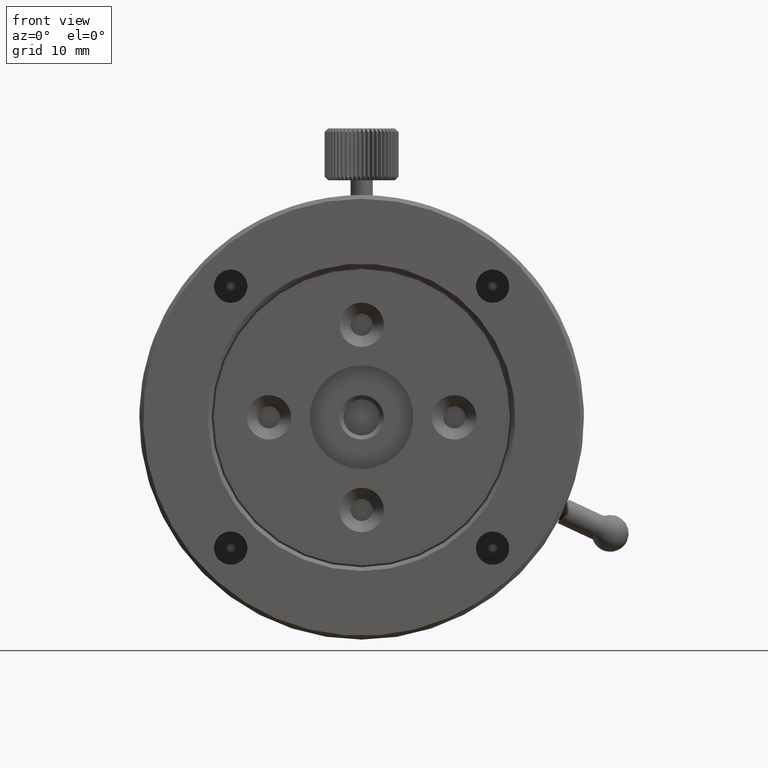
[diagram: clean part render]
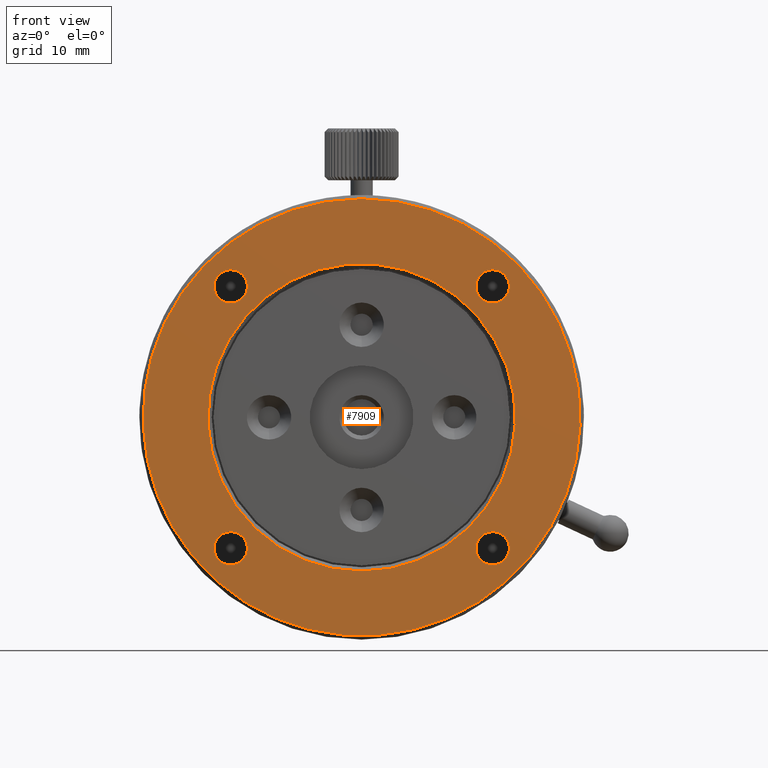
[diagram: same view with one face highlighted and labeled with its STEP entity id]
A machine part, front view. The second image highlights one B-rep face of the part: STEP entity #7909.
In plain terms, the highlighted planar face has unit normal (0, -1, 0).
Its self-contained STEP definition (entity closure, byte-faithful):
#3 = EDGE_CURVE ( 'NONE', #2236, #2236, #1666, .T. ) ;
#20 = DIRECTION ( 'NONE',  ( 0.000000000000000000, 0.000000000000000000, -1.000000000000000000 ) ) ;
#25 = ORIENTED_EDGE ( 'NONE', *, *, #5027, .T. ) ;
#82 = DIRECTION ( 'NONE',  ( 0.000000000000000000, 0.000000000000000000, -1.000000000000000000 ) ) ;
#176 = FACE_BOUND ( 'NONE', #7146, .T. ) ;
#351 = AXIS2_PLACEMENT_3D ( 'NONE', #7699, #2557, #5445 ) ;
#513 = EDGE_LOOP ( 'NONE', ( #3198 ) ) ;
#550 = CARTESIAN_POINT ( 'NONE',  ( -17.67766952966370297, 0.000000000000000000, -19.92766952966367455 ) ) ;
#693 = CARTESIAN_POINT ( 'NONE',  ( 0.000000000000000000, 0.000000000000000000, 0.000000000000000000 ) ) ;
#809 = FACE_BOUND ( 'NONE', #513, .T. ) ;
#982 = AXIS2_PLACEMENT_3D ( 'NONE', #5275, #2284, #82 ) ;
#1075 = VERTEX_POINT ( 'NONE', #4009 ) ;
#1231 = CIRCLE ( 'NONE', #2294, 2.249999999999998668 ) ;
#1266 = VERTEX_POINT ( 'NONE', #9452 ) ;
#1662 = ORIENTED_EDGE ( 'NONE', *, *, #5806, .T. ) ;
#1666 = CIRCLE ( 'NONE', #5660, 29.50000000000000355 ) ;
#1801 = DIRECTION ( 'NONE',  ( 0.000000000000000000, 0.000000000000000000, -1.000000000000000000 ) ) ;
#1876 = CIRCLE ( 'NONE', #351, 2.249999999999998668 ) ;
#1970 = AXIS2_PLACEMENT_3D ( 'NONE', #693, #2260, #3617 ) ;
#1973 = VERTEX_POINT ( 'NONE', #550 ) ;
#2043 = CIRCLE ( 'NONE', #9123, 2.249999999999998668 ) ;
#2228 = CARTESIAN_POINT ( 'NONE',  ( 17.67766952966370297, 0.000000000000000000, 15.42766952966367811 ) ) ;
#2236 = VERTEX_POINT ( 'NONE', #4494 ) ;
#2260 = DIRECTION ( 'NONE',  ( -0.000000000000000000, 1.000000000000000000, -0.000000000000000000 ) ) ;
#2284 = DIRECTION ( 'NONE',  ( 0.000000000000000000, -1.000000000000000000, 0.000000000000000000 ) ) ;
#2294 = AXIS2_PLACEMENT_3D ( 'NONE', #6289, #5571, #8509 ) ;
#2338 = PLANE ( 'NONE',  #982 ) ;
#2557 = DIRECTION ( 'NONE',  ( -0.000000000000000000, 1.000000000000000000, -0.000000000000000000 ) ) ;
#2690 = DIRECTION ( 'NONE',  ( 0.000000000000000000, 0.000000000000000000, 1.000000000000000000 ) ) ;
#2762 = CIRCLE ( 'NONE', #1970, 20.74999999999999645 ) ;
#2927 = ORIENTED_EDGE ( 'NONE', *, *, #3, .F. ) ;
#3106 = FACE_BOUND ( 'NONE', #3370, .T. ) ;
#3160 = DIRECTION ( 'NONE',  ( -0.000000000000000000, 1.000000000000000000, -0.000000000000000000 ) ) ;
#3198 = ORIENTED_EDGE ( 'NONE', *, *, #4092, .T. ) ;
#3264 = ORIENTED_EDGE ( 'NONE', *, *, #4498, .T. ) ;
#3370 = EDGE_LOOP ( 'NONE', ( #3264 ) ) ;
#3516 = CARTESIAN_POINT ( 'NONE',  ( 0.000000000000000000, 0.000000000000000000, -20.74999999999999645 ) ) ;
#3617 = DIRECTION ( 'NONE',  ( 0.000000000000000000, 0.000000000000000000, -1.000000000000000000 ) ) ;
#3624 = VERTEX_POINT ( 'NONE', #3516 ) ;
#4009 = CARTESIAN_POINT ( 'NONE',  ( -17.67766952966367811, 0.000000000000000000, 15.42766952966370297 ) ) ;
#4092 = EDGE_CURVE ( 'NONE', #1075, #1075, #1876, .T. ) ;
#4494 = CARTESIAN_POINT ( 'NONE',  ( 0.000000000000000000, 0.000000000000000000, 29.50000000000000355 ) ) ;
#4498 = EDGE_CURVE ( 'NONE', #1266, #1266, #9421, .T. ) ;
#5027 = EDGE_CURVE ( 'NONE', #1973, #1973, #1231, .T. ) ;
#5275 = CARTESIAN_POINT ( 'NONE',  ( 14.67246570962084995, 0.000000000000000000, -14.67246570962087127 ) ) ;
#5304 = VERTEX_POINT ( 'NONE', #2228 ) ;
#5445 = DIRECTION ( 'NONE',  ( 0.000000000000000000, 0.000000000000000000, -1.000000000000000000 ) ) ;
#5571 = DIRECTION ( 'NONE',  ( -0.000000000000000000, 1.000000000000000000, -0.000000000000000000 ) ) ;
#5660 = AXIS2_PLACEMENT_3D ( 'NONE', #6396, #9187, #2690 ) ;
#5769 = EDGE_LOOP ( 'NONE', ( #2927 ) ) ;
#5792 = ORIENTED_EDGE ( 'NONE', *, *, #8202, .T. ) ;
#5806 = EDGE_CURVE ( 'NONE', #3624, #3624, #2762, .T. ) ;
#6035 = CARTESIAN_POINT ( 'NONE',  ( 17.67766952966367811, 0.000000000000000000, -17.67766952966370297 ) ) ;
#6048 = FACE_BOUND ( 'NONE', #7376, .T. ) ;
#6132 = FACE_BOUND ( 'NONE', #8024, .T. ) ;
#6289 = CARTESIAN_POINT ( 'NONE',  ( -17.67766952966370297, 0.000000000000000000, -17.67766952966367811 ) ) ;
#6396 = CARTESIAN_POINT ( 'NONE',  ( 0.000000000000000000, 0.000000000000000000, 0.000000000000000000 ) ) ;
#6500 = AXIS2_PLACEMENT_3D ( 'NONE', #6035, #6609, #20 ) ;
#6609 = DIRECTION ( 'NONE',  ( -0.000000000000000000, 1.000000000000000000, -0.000000000000000000 ) ) ;
#6957 = CARTESIAN_POINT ( 'NONE',  ( 17.67766952966370297, 0.000000000000000000, 17.67766952966367811 ) ) ;
#7146 = EDGE_LOOP ( 'NONE', ( #25 ) ) ;
#7376 = EDGE_LOOP ( 'NONE', ( #5792 ) ) ;
#7699 = CARTESIAN_POINT ( 'NONE',  ( -17.67766952966367811, 0.000000000000000000, 17.67766952966370297 ) ) ;
#7909 = ADVANCED_FACE ( 'NONE', ( #8240, #3106, #176, #809, #6048, #6132 ), #2338, .T. ) ;
#8024 = EDGE_LOOP ( 'NONE', ( #1662 ) ) ;
#8202 = EDGE_CURVE ( 'NONE', #5304, #5304, #2043, .T. ) ;
#8240 = FACE_OUTER_BOUND ( 'NONE', #5769, .T. ) ;
#8509 = DIRECTION ( 'NONE',  ( 0.000000000000000000, 0.000000000000000000, -1.000000000000000000 ) ) ;
#9123 = AXIS2_PLACEMENT_3D ( 'NONE', #6957, #3160, #1801 ) ;
#9187 = DIRECTION ( 'NONE',  ( 0.000000000000000000, 1.000000000000000000, 0.000000000000000000 ) ) ;
#9421 = CIRCLE ( 'NONE', #6500, 2.249999999999998668 ) ;
#9452 = CARTESIAN_POINT ( 'NONE',  ( 17.67766952966367811, 0.000000000000000000, -19.92766952966369942 ) ) ;